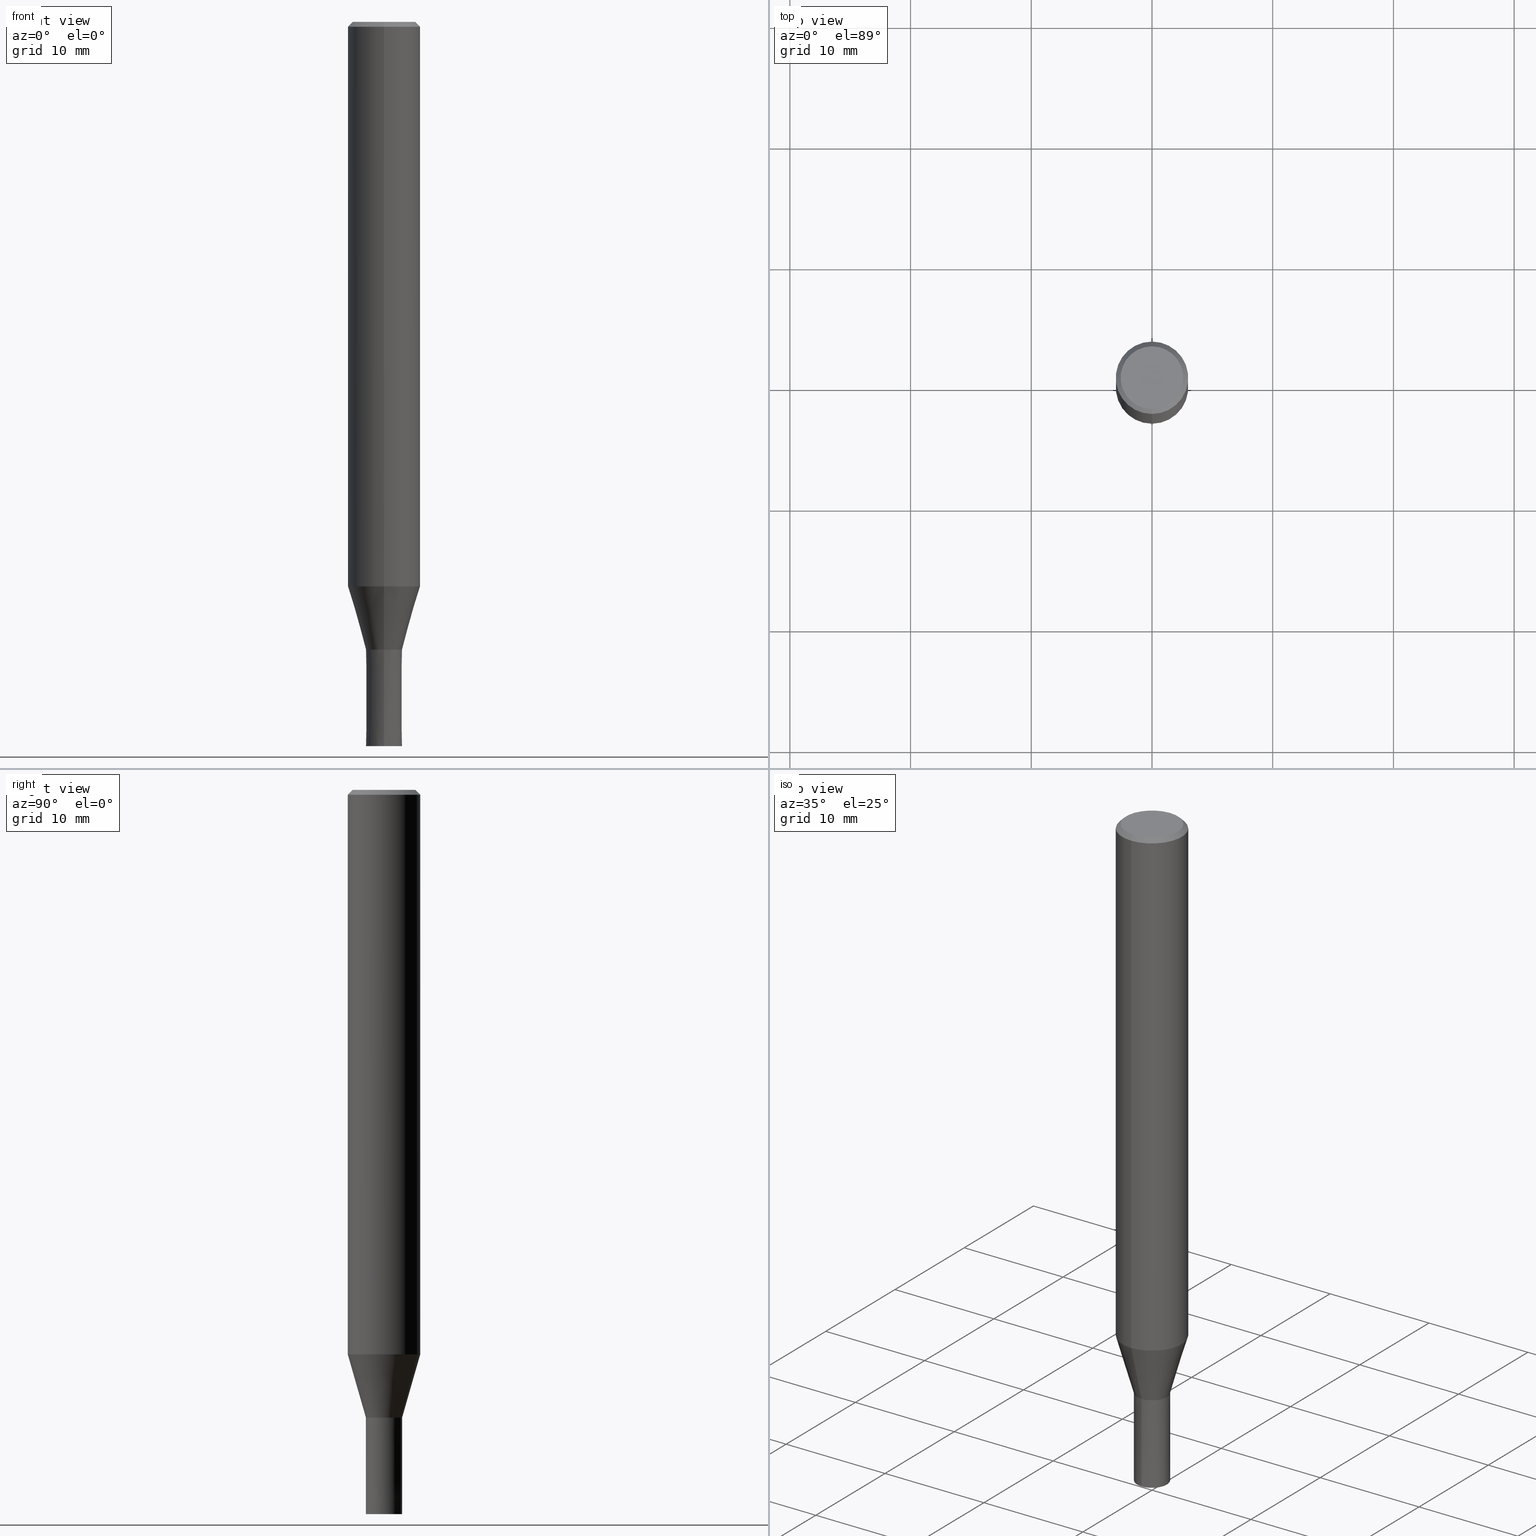
[diagram: canonical four-view strip — front | top / right | iso, engineering-drawing reading convention]
A machine part, canonical four-view strip (front | top / right | iso — engineering-drawing reading convention). The complete STEP part file that produces these views, byte-faithful:
ISO-10303-21;
HEADER;
FILE_DESCRIPTION(('no description'),'unknown implementation level');
FILE_NAME('CZS4030-0800-Huellk.stp','  ',('CIMSOURCE GmbH'),('CADClick - KiM GmbH - www.kimweb.de'),'unknown preprocess','ACIS','unknown authorization');
FILE_SCHEMA(('automotive_design'));
ENDSEC;
DATA;
#1=MECHANICAL_DESIGN_GEOMETRIC_PRESENTATION_REPRESENTATION(' ',(#14,#15,#16,#17,#18,#19,#20,#21,#22,#23,#24,#25,#26,#27,#28,#29,#30,#31,#32,#33,#34,#35,#36,#37,#38,#39,#40,#41,#42,#43,#44,#45,#46,#47,#48,#49,#50,#51,#52,#53,#54,#55,#56,#57,#58,#59,#60,#61,#62,#63,#64),#10);
#2=PRODUCT_DEFINITION_CONTEXT('',#65,'design');
#3=APPLICATION_PROTOCOL_DEFINITION('INTERNATIONAL STANDARD','automotive_design',1994,#65);
#4=PRODUCT_CATEGORY_RELATIONSHIP('NONE','NONE',#66,#67);
#5=SHAPE_DEFINITION_REPRESENTATION(#68,#69);
#6=PRODUCT_DEFINITION_CONTEXT('',#70,'design');
#7=APPLICATION_PROTOCOL_DEFINITION('INTERNATIONAL STANDARD','automotive_design',1994,#70);
#8=PRODUCT_CATEGORY_RELATIONSHIP('NONE','NONE',#71,#72);
#9=SHAPE_DEFINITION_REPRESENTATION(#73,#74);
#10= (GEOMETRIC_REPRESENTATION_CONTEXT(3)GLOBAL_UNCERTAINTY_ASSIGNED_CONTEXT((#77))GLOBAL_UNIT_ASSIGNED_CONTEXT((#79,#80,#81))REPRESENTATION_CONTEXT('NONE','WORKSPACE'));
#14=STYLED_ITEM('',(#83),#84);
#15=STYLED_ITEM('',(#85),#86);
#16=STYLED_ITEM('',(#87),#88);
#17=STYLED_ITEM('',(#89),#90);
#18=STYLED_ITEM('',(#91),#92);
#19=STYLED_ITEM('',(#93),#94);
#20=STYLED_ITEM('',(#95),#96);
#21=STYLED_ITEM('',(#97),#98);
#22=STYLED_ITEM('',(#99),#100);
#23=STYLED_ITEM('',(#101),#102);
#24=STYLED_ITEM('',(#103),#104);
#25=STYLED_ITEM('',(#105),#106);
#26=STYLED_ITEM('',(#107),#108);
#27=STYLED_ITEM('',(#109),#110);
#28=STYLED_ITEM('',(#111),#112);
#29=STYLED_ITEM('',(#113),#114);
#30=STYLED_ITEM('',(#115),#116);
#31=STYLED_ITEM('',(#117),#118);
#32=STYLED_ITEM('',(#119),#120);
#33=STYLED_ITEM('',(#121),#122);
#34=STYLED_ITEM('',(#123),#124);
#35=STYLED_ITEM('',(#125),#126);
#36=STYLED_ITEM('',(#127),#128);
#37=STYLED_ITEM('',(#129),#130);
#38=STYLED_ITEM('',(#131),#132);
#39=STYLED_ITEM('',(#133),#134);
#40=STYLED_ITEM('',(#135),#136);
#41=STYLED_ITEM('',(#137),#138);
#42=STYLED_ITEM('',(#139),#140);
#43=STYLED_ITEM('',(#141),#142);
#44=STYLED_ITEM('',(#143),#144);
#45=STYLED_ITEM('',(#145),#146);
#46=STYLED_ITEM('',(#147),#148);
#47=STYLED_ITEM('',(#149),#150);
#48=STYLED_ITEM('',(#151),#152);
#49=STYLED_ITEM('',(#153),#154);
#50=STYLED_ITEM('',(#155),#156);
#51=STYLED_ITEM('',(#157),#158);
#52=STYLED_ITEM('',(#159),#160);
#53=STYLED_ITEM('',(#161),#162);
#54=STYLED_ITEM('',(#163),#164);
#55=STYLED_ITEM('',(#165),#166);
#56=STYLED_ITEM('',(#167),#168);
#57=STYLED_ITEM('',(#169),#170);
#58=STYLED_ITEM('',(#171),#172);
#59=STYLED_ITEM('',(#173),#174);
#60=STYLED_ITEM('',(#175),#176);
#61=STYLED_ITEM('',(#177),#178);
#62=STYLED_ITEM('',(#179),#180);
#63=STYLED_ITEM('',(#181),#182);
#64=STYLED_ITEM('',(#183),#184);
#65=APPLICATION_CONTEXT(' ');
#66=PRODUCT_CATEGORY('part','NONE');
#67=PRODUCT_RELATED_PRODUCT_CATEGORY('detail',' ',(#185));
#68=PRODUCT_DEFINITION_SHAPE('NONE','NONE',#186);
#69=ADVANCED_BREP_SHAPE_REPRESENTATION('1',(#94,#187),#10);
#70=APPLICATION_CONTEXT(' ');
#71=PRODUCT_CATEGORY('part','NONE');
#72=PRODUCT_RELATED_PRODUCT_CATEGORY('detail',' ',(#188));
#73=PRODUCT_DEFINITION_SHAPE('NONE','NONE',#189);
#74=ADVANCED_BREP_SHAPE_REPRESENTATION('2',(#148,#190),#10);
#77=UNCERTAINTY_MEASURE_WITH_UNIT(LENGTH_MEASURE(1.0E-006),#79,'','');
#79= (CONVERSION_BASED_UNIT('MILLIMETRE',#193)LENGTH_UNIT()NAMED_UNIT(#196));
#80= (NAMED_UNIT(#198)PLANE_ANGLE_UNIT()SI_UNIT($,.RADIAN.));
#81= (NAMED_UNIT(#198)SOLID_ANGLE_UNIT()SI_UNIT($,.STERADIAN.));
#83=PRESENTATION_STYLE_ASSIGNMENT((#204));
#84=ADVANCED_FACE('',(#205),#206,.T.);
#85=PRESENTATION_STYLE_ASSIGNMENT((#207));
#86=VERTEX_POINT('',#208);
#87=PRESENTATION_STYLE_ASSIGNMENT((#209));
#88=EDGE_CURVE('',#132,#124,#210,.T.);
#89=PRESENTATION_STYLE_ASSIGNMENT((#211));
#90=EDGE_CURVE('',#114,#86,#212,.T.);
#91=PRESENTATION_STYLE_ASSIGNMENT((#213));
#92=EDGE_CURVE('',#170,#130,#214,.T.);
#93=PRESENTATION_STYLE_ASSIGNMENT((#215));
#94=MANIFOLD_SOLID_BREP('1',#216);
#95=PRESENTATION_STYLE_ASSIGNMENT((#217));
#96=EDGE_CURVE('',#134,#114,#218,.T.);
#97=PRESENTATION_STYLE_ASSIGNMENT((#219));
#98=EDGE_CURVE('',#144,#170,#220,.T.);
#99=PRESENTATION_STYLE_ASSIGNMENT((#221));
#100=ADVANCED_FACE('',(#222),#223,.T.);
#101=PRESENTATION_STYLE_ASSIGNMENT((#224));
#102=EDGE_CURVE('',#122,#110,#225,.T.);
#103=PRESENTATION_STYLE_ASSIGNMENT((#226));
#104=ADVANCED_FACE('',(#227),#228,.T.);
#105=PRESENTATION_STYLE_ASSIGNMENT((#229));
#106=EDGE_CURVE('',#132,#128,#230,.T.);
#107=PRESENTATION_STYLE_ASSIGNMENT((#231));
#108=EDGE_CURVE('',#130,#182,#232,.T.);
#109=PRESENTATION_STYLE_ASSIGNMENT((#233));
#110=VERTEX_POINT('',#234);
#111=PRESENTATION_STYLE_ASSIGNMENT((#235));
#112=EDGE_CURVE('',#182,#130,#236,.T.);
#113=PRESENTATION_STYLE_ASSIGNMENT((#237));
#114=VERTEX_POINT('',#238);
#115=PRESENTATION_STYLE_ASSIGNMENT((#239));
#116=EDGE_CURVE('',#182,#144,#240,.T.);
#117=PRESENTATION_STYLE_ASSIGNMENT((#241));
#118=EDGE_CURVE('',#110,#122,#242,.T.);
#119=PRESENTATION_STYLE_ASSIGNMENT((#243));
#120=ADVANCED_FACE('',(#244),#245,.T.);
#121=PRESENTATION_STYLE_ASSIGNMENT((#246));
#122=VERTEX_POINT('',#247);
#123=PRESENTATION_STYLE_ASSIGNMENT((#248));
#124=VERTEX_POINT('',#249);
#125=PRESENTATION_STYLE_ASSIGNMENT((#250));
#126=EDGE_CURVE('',#128,#122,#251,.T.);
#127=PRESENTATION_STYLE_ASSIGNMENT((#252));
#128=VERTEX_POINT('',#253);
#129=PRESENTATION_STYLE_ASSIGNMENT((#254));
#130=VERTEX_POINT('',#255);
#131=PRESENTATION_STYLE_ASSIGNMENT((#256));
#132=VERTEX_POINT('',#257);
#133=PRESENTATION_STYLE_ASSIGNMENT((#258));
#134=VERTEX_POINT('',#259);
#135=PRESENTATION_STYLE_ASSIGNMENT((#260));
#136=EDGE_CURVE('',#124,#166,#261,.T.);
#137=PRESENTATION_STYLE_ASSIGNMENT((#262));
#138=EDGE_CURVE('',#166,#128,#263,.T.);
#139=PRESENTATION_STYLE_ASSIGNMENT((#264));
#140=ADVANCED_FACE('',(#265),#266,.T.);
#141=PRESENTATION_STYLE_ASSIGNMENT((#267));
#142=EDGE_CURVE('',#134,#156,#268,.T.);
#143=PRESENTATION_STYLE_ASSIGNMENT((#269));
#144=VERTEX_POINT('',#270);
#145=PRESENTATION_STYLE_ASSIGNMENT((#271));
#146=EDGE_CURVE('',#128,#132,#272,.T.);
#147=PRESENTATION_STYLE_ASSIGNMENT((#273));
#148=MANIFOLD_SOLID_BREP('2',#274);
#149=PRESENTATION_STYLE_ASSIGNMENT((#275));
#150=ADVANCED_FACE('',(#276),#277,.T.);
#151=PRESENTATION_STYLE_ASSIGNMENT((#278));
#152=EDGE_CURVE('',#156,#134,#279,.T.);
#153=PRESENTATION_STYLE_ASSIGNMENT((#280));
#154=ADVANCED_FACE('',(#281,#282),#283,.T.);
#155=PRESENTATION_STYLE_ASSIGNMENT((#284));
#156=VERTEX_POINT('',#285);
#157=PRESENTATION_STYLE_ASSIGNMENT((#286));
#158=EDGE_CURVE('',#110,#132,#287,.T.);
#159=PRESENTATION_STYLE_ASSIGNMENT((#288));
#160=ADVANCED_FACE('',(#289),#290,.T.);
#161=PRESENTATION_STYLE_ASSIGNMENT((#291));
#162=ADVANCED_FACE('',(#292),#293,.T.);
#163=PRESENTATION_STYLE_ASSIGNMENT((#294));
#164=ADVANCED_FACE('',(#295),#296,.T.);
#165=PRESENTATION_STYLE_ASSIGNMENT((#297));
#166=VERTEX_POINT('',#298);
#167=PRESENTATION_STYLE_ASSIGNMENT((#299));
#168=EDGE_CURVE('',#170,#144,#300,.T.);
#169=PRESENTATION_STYLE_ASSIGNMENT((#301));
#170=VERTEX_POINT('',#302);
#171=PRESENTATION_STYLE_ASSIGNMENT((#303));
#172=ADVANCED_FACE('',(#304),#305,.T.);
#173=PRESENTATION_STYLE_ASSIGNMENT((#306));
#174=EDGE_CURVE('',#166,#124,#307,.T.);
#175=PRESENTATION_STYLE_ASSIGNMENT((#308));
#176=EDGE_CURVE('',#86,#156,#309,.T.);
#177=PRESENTATION_STYLE_ASSIGNMENT((#310));
#178=ADVANCED_FACE('',(#311),#312,.T.);
#179=PRESENTATION_STYLE_ASSIGNMENT((#313));
#180=EDGE_CURVE('',#86,#114,#314,.T.);
#181=PRESENTATION_STYLE_ASSIGNMENT((#315));
#182=VERTEX_POINT('',#316);
#183=PRESENTATION_STYLE_ASSIGNMENT((#317));
#184=ADVANCED_FACE('',(#318),#319,.T.);
#185=PRODUCT('1','1','PART-1-DESC',(#320));
#186=PRODUCT_DEFINITION('NONE','NONE',#321,#2);
#187=AXIS2_PLACEMENT_3D('',#322,#323,#324);
#188=PRODUCT('2','2','PART-2-DESC',(#325));
#189=PRODUCT_DEFINITION('NONE','NONE',#326,#6);
#190=AXIS2_PLACEMENT_3D('',#327,#328,#329);
#193=LENGTH_MEASURE_WITH_UNIT(LENGTH_MEASURE(1.0),#330);
#196=DIMENSIONAL_EXPONENTS(1.0,0.0,0.0,0.0,0.0,0.0,0.0);
#198=DIMENSIONAL_EXPONENTS(0.0,0.0,0.0,0.0,0.0,0.0,0.0);
#204=SURFACE_STYLE_USAGE(.BOTH.,#331);
#205=FACE_OUTER_BOUND('',#332,.T.);
#206=CONICAL_SURFACE('',#333,2.8,0.78539816339745);
#207=POINT_STYLE(' ',#334,POSITIVE_LENGTH_MEASURE(1.0E-006),#335);
#208=CARTESIAN_POINT('',(0.0,2.99995,-46.769));
#209=CURVE_STYLE('',#336,POSITIVE_LENGTH_MEASURE(1.0E-006),#337);
#210=LINE('',#338,#339);
#211=CURVE_STYLE('',#340,POSITIVE_LENGTH_MEASURE(1.0E-006),#341);
#212=CIRCLE('',#342,2.99995);
#213=CURVE_STYLE('',#343,POSITIVE_LENGTH_MEASURE(1.0E-006),#344);
#214=LINE('',#345,#346);
#215=SURFACE_STYLE_USAGE(.BOTH.,#347);
#216=CLOSED_SHELL('',(#178,#172,#120,#154,#162,#84,#140,#150,#100));
#217=CURVE_STYLE('',#348,POSITIVE_LENGTH_MEASURE(1.0E-006),#349);
#218=LINE('',#350,#351);
#219=CURVE_STYLE('',#352,POSITIVE_LENGTH_MEASURE(1.0E-006),#353);
#220=CIRCLE('',#354,1.4999);
#221=SURFACE_STYLE_USAGE(.BOTH.,#355);
#222=FACE_OUTER_BOUND('',#356,.T.);
#223=PLANE('',#357);
#224=CURVE_STYLE('',#358,POSITIVE_LENGTH_MEASURE(1.0E-006),#359);
#225=CIRCLE('',#360,2.6);
#226=SURFACE_STYLE_USAGE(.BOTH.,#361);
#227=FACE_OUTER_BOUND('',#362,.T.);
#228=CONICAL_SURFACE('',#363,1.49995,1.24999999993476E-005);
#229=CURVE_STYLE('',#364,POSITIVE_LENGTH_MEASURE(1.0E-006),#365);
#230=CIRCLE('',#366,3.0);
#231=CURVE_STYLE('',#367,POSITIVE_LENGTH_MEASURE(1.0E-006),#368);
#232=CIRCLE('',#369,1.5);
#233=POINT_STYLE(' ',#370,POSITIVE_LENGTH_MEASURE(1.0E-006),#371);
#234=CARTESIAN_POINT('',(0.0,2.6,0.0));
#235=CURVE_STYLE('',#372,POSITIVE_LENGTH_MEASURE(1.0E-006),#373);
#236=CIRCLE('',#374,1.5);
#237=POINT_STYLE(' ',#375,POSITIVE_LENGTH_MEASURE(1.0E-006),#376);
#238=CARTESIAN_POINT('',(3.67375783114944E-016,-2.99995,-46.769));
#239=CURVE_STYLE('',#377,POSITIVE_LENGTH_MEASURE(1.0E-006),#378);
#240=LINE('',#379,#380);
#241=CURVE_STYLE('',#381,POSITIVE_LENGTH_MEASURE(1.0E-006),#382);
#242=CIRCLE('',#383,2.6);
#243=SURFACE_STYLE_USAGE(.BOTH.,#384);
#244=FACE_OUTER_BOUND('',#385,.T.);
#245=CONICAL_SURFACE('',#386,2.8,0.78539816339745);
#246=POINT_STYLE(' ',#387,POSITIVE_LENGTH_MEASURE(1.0E-006),#388);
#247=CARTESIAN_POINT('',(3.18397651993818E-016,-2.6,0.0));
#248=POINT_STYLE(' ',#389,POSITIVE_LENGTH_MEASURE(1.0E-006),#390);
#249=CARTESIAN_POINT('',(0.0,3.0,-46.769));
#250=CURVE_STYLE('',#391,POSITIVE_LENGTH_MEASURE(1.0E-006),#392);
#251=LINE('',#393,#394);
#252=POINT_STYLE(' ',#395,POSITIVE_LENGTH_MEASURE(1.0E-006),#396);
#253=CARTESIAN_POINT('',(3.67381906146713E-016,-3.0,-0.399999999999999));
#254=POINT_STYLE(' ',#397,POSITIVE_LENGTH_MEASURE(1.0E-006),#398);
#255=CARTESIAN_POINT('',(0.0,1.5,-60.0));
#256=POINT_STYLE(' ',#399,POSITIVE_LENGTH_MEASURE(1.0E-006),#400);
#257=CARTESIAN_POINT('',(0.0,3.0,-0.399999999999999));
#258=POINT_STYLE(' ',#401,POSITIVE_LENGTH_MEASURE(1.0E-006),#402);
#259=CARTESIAN_POINT('',(1.83684830041587E-016,-1.49995,-52.0));
#260=CURVE_STYLE('',#403,POSITIVE_LENGTH_MEASURE(1.0E-006),#404);
#261=CIRCLE('',#405,3.0);
#262=CURVE_STYLE('',#406,POSITIVE_LENGTH_MEASURE(1.0E-006),#407);
#263=LINE('',#408,#409);
#264=SURFACE_STYLE_USAGE(.BOTH.,#410);
#265=FACE_OUTER_BOUND('',#411,.T.);
#266=CYLINDRICAL_SURFACE('',#412,3.0);
#267=CURVE_STYLE('',#413,POSITIVE_LENGTH_MEASURE(1.0E-006),#414);
#268=CIRCLE('',#415,1.49995);
#269=POINT_STYLE(' ',#416,POSITIVE_LENGTH_MEASURE(1.0E-006),#417);
#270=CARTESIAN_POINT('',(1.83678707009818E-016,-1.4999,-52.0));
#271=CURVE_STYLE('',#418,POSITIVE_LENGTH_MEASURE(1.0E-006),#419);
#272=CIRCLE('',#420,3.0);
#273=SURFACE_STYLE_USAGE(.BOTH.,#421);
#274=CLOSED_SHELL('',(#104,#160,#184,#164));
#275=SURFACE_STYLE_USAGE(.BOTH.,#422);
#276=FACE_OUTER_BOUND('',#423,.T.);
#277=CONICAL_SURFACE('',#424,2.24995,0.279258842899557);
#278=CURVE_STYLE('',#425,POSITIVE_LENGTH_MEASURE(1.0E-006),#426);
#279=CIRCLE('',#427,1.49995);
#280=SURFACE_STYLE_USAGE(.BOTH.,#428);
#281=FACE_OUTER_BOUND('',#429,.T.);
#282=FACE_BOUND('',#430,.T.);
#283=PLANE('',#431);
#284=POINT_STYLE(' ',#432,POSITIVE_LENGTH_MEASURE(1.0E-006),#433);
#285=CARTESIAN_POINT('',(0.0,1.49995,-52.0));
#286=CURVE_STYLE('',#434,POSITIVE_LENGTH_MEASURE(1.0E-006),#435);
#287=LINE('',#436,#437);
#288=SURFACE_STYLE_USAGE(.BOTH.,#438);
#289=FACE_OUTER_BOUND('',#439,.T.);
#290=PLANE('',#440);
#291=SURFACE_STYLE_USAGE(.BOTH.,#441);
#292=FACE_OUTER_BOUND('',#442,.T.);
#293=PLANE('',#443);
#294=SURFACE_STYLE_USAGE(.BOTH.,#444);
#295=FACE_OUTER_BOUND('',#445,.T.);
#296=PLANE('',#446);
#297=POINT_STYLE(' ',#447,POSITIVE_LENGTH_MEASURE(1.0E-006),#448);
#298=CARTESIAN_POINT('',(3.67381906146713E-016,-3.0,-46.769));
#299=CURVE_STYLE('',#449,POSITIVE_LENGTH_MEASURE(1.0E-006),#450);
#300=CIRCLE('',#451,1.4999);
#301=POINT_STYLE(' ',#452,POSITIVE_LENGTH_MEASURE(1.0E-006),#453);
#302=CARTESIAN_POINT('',(0.0,1.4999,-52.0));
#303=SURFACE_STYLE_USAGE(.BOTH.,#454);
#304=FACE_OUTER_BOUND('',#455,.T.);
#305=CYLINDRICAL_SURFACE('',#456,3.0);
#306=CURVE_STYLE('',#457,POSITIVE_LENGTH_MEASURE(1.0E-006),#458);
#307=CIRCLE('',#459,3.0);
#308=CURVE_STYLE('',#460,POSITIVE_LENGTH_MEASURE(1.0E-006),#461);
#309=LINE('',#462,#463);
#310=SURFACE_STYLE_USAGE(.BOTH.,#464);
#311=FACE_OUTER_BOUND('',#465,.T.);
#312=CONICAL_SURFACE('',#466,2.24995,0.279258842899557);
#313=CURVE_STYLE('',#467,POSITIVE_LENGTH_MEASURE(1.0E-006),#468);
#314=CIRCLE('',#469,2.99995);
#315=POINT_STYLE(' ',#470,POSITIVE_LENGTH_MEASURE(1.0E-006),#471);
#316=CARTESIAN_POINT('',(1.83690953073357E-016,-1.5,-60.0));
#317=SURFACE_STYLE_USAGE(.BOTH.,#472);
#318=FACE_OUTER_BOUND('',#473,.T.);
#319=CONICAL_SURFACE('',#474,1.49995,1.24999999993476E-005);
#320=PRODUCT_CONTEXT('',#65,'mechanical');
#321=PRODUCT_DEFINITION_FORMATION_WITH_SPECIFIED_SOURCE(' ','NONE',#185,.NOT_KNOWN.);
#322=CARTESIAN_POINT('',(0.0,0.0,0.0));
#323=DIRECTION('',(0.0,0.0,1.0));
#324=DIRECTION('',(1.0,0.0,0.0));
#325=PRODUCT_CONTEXT('',#70,'mechanical');
#326=PRODUCT_DEFINITION_FORMATION_WITH_SPECIFIED_SOURCE(' ','NONE',#188,.NOT_KNOWN.);
#327=CARTESIAN_POINT('',(0.0,0.0,0.0));
#328=DIRECTION('',(0.0,0.0,1.0));
#329=DIRECTION('',(1.0,0.0,0.0));
#330= (NAMED_UNIT(#196)LENGTH_UNIT()SI_UNIT(.MILLI.,.METRE.));
#331=SURFACE_SIDE_STYLE('',(#476));
#332=EDGE_LOOP('',(#477,#478,#479,#480));
#333=AXIS2_PLACEMENT_3D('',#481,#482,#483);
#334=PRE_DEFINED_MARKER('');
#335=COLOUR_RGB('',0.498039215803146,0.498039215803146,0.498039215803146);
#336=DRAUGHTING_PRE_DEFINED_CURVE_FONT('continuous');
#337=COLOUR_RGB('',0.498039215803146,0.498039215803146,0.498039215803146);
#338=CARTESIAN_POINT('',(-3.67381906146713E-016,3.0,-23.5845));
#339=VECTOR('',#484,1.0);
#340=DRAUGHTING_PRE_DEFINED_CURVE_FONT('continuous');
#341=COLOUR_RGB('',0.498039215803146,0.498039215803146,0.498039215803146);
#342=AXIS2_PLACEMENT_3D('',#485,#486,#487);
#343=DRAUGHTING_PRE_DEFINED_CURVE_FONT('continuous');
#344=COLOUR_RGB('',0.800000011920929,0.800000011920929,0.800000011920929);
#345=CARTESIAN_POINT('',(-1.83684830041587E-016,1.49995,-56.0));
#346=VECTOR('',#488,1.0);
#347=SURFACE_SIDE_STYLE('',(#489));
#348=DRAUGHTING_PRE_DEFINED_CURVE_FONT('continuous');
#349=COLOUR_RGB('',0.498039215803146,0.498039215803146,0.498039215803146);
#350=CARTESIAN_POINT('',(2.75530306578266E-016,-2.24995,-49.3845));
#351=VECTOR('',#490,1.0);
#352=DRAUGHTING_PRE_DEFINED_CURVE_FONT('continuous');
#353=COLOUR_RGB('',0.800000011920929,0.800000011920929,0.800000011920929);
#354=AXIS2_PLACEMENT_3D('',#491,#492,#493);
#355=SURFACE_SIDE_STYLE('',(#494));
#356=EDGE_LOOP('',(#495,#496));
#357=AXIS2_PLACEMENT_3D('',#497,#498,#499);
#358=DRAUGHTING_PRE_DEFINED_CURVE_FONT('continuous');
#359=COLOUR_RGB('',0.498039215803146,0.498039215803146,0.498039215803146);
#360=AXIS2_PLACEMENT_3D('',#500,#501,#502);
#361=SURFACE_SIDE_STYLE('',(#503));
#362=EDGE_LOOP('',(#504,#505,#506,#507));
#363=AXIS2_PLACEMENT_3D('',#508,#509,#510);
#364=DRAUGHTING_PRE_DEFINED_CURVE_FONT('continuous');
#365=COLOUR_RGB('',0.498039215803146,0.498039215803146,0.498039215803146);
#366=AXIS2_PLACEMENT_3D('',#511,#512,#513);
#367=DRAUGHTING_PRE_DEFINED_CURVE_FONT('continuous');
#368=COLOUR_RGB('',0.800000011920929,0.800000011920929,0.800000011920929);
#369=AXIS2_PLACEMENT_3D('',#514,#515,#516);
#370=PRE_DEFINED_MARKER('');
#371=COLOUR_RGB('',0.498039215803146,0.498039215803146,0.498039215803146);
#372=DRAUGHTING_PRE_DEFINED_CURVE_FONT('continuous');
#373=COLOUR_RGB('',0.800000011920929,0.800000011920929,0.800000011920929);
#374=AXIS2_PLACEMENT_3D('',#517,#518,#519);
#375=PRE_DEFINED_MARKER('');
#376=COLOUR_RGB('',0.498039215803146,0.498039215803146,0.498039215803146);
#377=DRAUGHTING_PRE_DEFINED_CURVE_FONT('continuous');
#378=COLOUR_RGB('',0.800000011920929,0.800000011920929,0.800000011920929);
#379=CARTESIAN_POINT('',(1.83684830041588E-016,-1.49995,-56.0));
#380=VECTOR('',#520,1.0);
#381=DRAUGHTING_PRE_DEFINED_CURVE_FONT('continuous');
#382=COLOUR_RGB('',0.498039215803146,0.498039215803146,0.498039215803146);
#383=AXIS2_PLACEMENT_3D('',#521,#522,#523);
#384=SURFACE_SIDE_STYLE('',(#524));
#385=EDGE_LOOP('',(#525,#526,#527,#528));
#386=AXIS2_PLACEMENT_3D('',#529,#530,#531);
#387=PRE_DEFINED_MARKER('');
#388=COLOUR_RGB('',0.498039215803146,0.498039215803146,0.498039215803146);
#389=PRE_DEFINED_MARKER('');
#390=COLOUR_RGB('',0.498039215803146,0.498039215803146,0.498039215803146);
#391=DRAUGHTING_PRE_DEFINED_CURVE_FONT('continuous');
#392=COLOUR_RGB('',0.498039215803146,0.498039215803146,0.498039215803146);
#393=CARTESIAN_POINT('',(3.42889779070266E-016,-2.8,-0.199999999999996));
#394=VECTOR('',#532,1.0);
#395=PRE_DEFINED_MARKER('');
#396=COLOUR_RGB('',0.498039215803146,0.498039215803146,0.498039215803146);
#397=PRE_DEFINED_MARKER('');
#398=COLOUR_RGB('',0.800000011920929,0.800000011920929,0.800000011920929);
#399=PRE_DEFINED_MARKER('');
#400=COLOUR_RGB('',0.498039215803146,0.498039215803146,0.498039215803146);
#401=PRE_DEFINED_MARKER('');
#402=COLOUR_RGB('',0.498039215803146,0.498039215803146,0.498039215803146);
#403=DRAUGHTING_PRE_DEFINED_CURVE_FONT('continuous');
#404=COLOUR_RGB('',0.498039215803146,0.498039215803146,0.498039215803146);
#405=AXIS2_PLACEMENT_3D('',#533,#534,#535);
#406=DRAUGHTING_PRE_DEFINED_CURVE_FONT('continuous');
#407=COLOUR_RGB('',0.498039215803146,0.498039215803146,0.498039215803146);
#408=CARTESIAN_POINT('',(3.67381906146713E-016,-3.0,-23.5845));
#409=VECTOR('',#536,1.0);
#410=SURFACE_SIDE_STYLE('',(#537));
#411=EDGE_LOOP('',(#538,#539,#540,#541));
#412=AXIS2_PLACEMENT_3D('',#542,#543,#544);
#413=DRAUGHTING_PRE_DEFINED_CURVE_FONT('continuous');
#414=COLOUR_RGB('',0.498039215803146,0.498039215803146,0.498039215803146);
#415=AXIS2_PLACEMENT_3D('',#545,#546,#547);
#416=PRE_DEFINED_MARKER('');
#417=COLOUR_RGB('',0.800000011920929,0.800000011920929,0.800000011920929);
#418=DRAUGHTING_PRE_DEFINED_CURVE_FONT('continuous');
#419=COLOUR_RGB('',0.498039215803146,0.498039215803146,0.498039215803146);
#420=AXIS2_PLACEMENT_3D('',#548,#549,#550);
#421=SURFACE_SIDE_STYLE('',(#551));
#422=SURFACE_SIDE_STYLE('',(#552));
#423=EDGE_LOOP('',(#553,#554,#555,#556));
#424=AXIS2_PLACEMENT_3D('',#557,#558,#559);
#425=DRAUGHTING_PRE_DEFINED_CURVE_FONT('continuous');
#426=COLOUR_RGB('',0.498039215803146,0.498039215803146,0.498039215803146);
#427=AXIS2_PLACEMENT_3D('',#560,#561,#562);
#428=SURFACE_SIDE_STYLE('',(#563));
#429=EDGE_LOOP('',(#564,#565));
#430=EDGE_LOOP('',(#566,#567));
#431=AXIS2_PLACEMENT_3D('',#568,#569,#570);
#432=PRE_DEFINED_MARKER('');
#433=COLOUR_RGB('',0.498039215803146,0.498039215803146,0.498039215803146);
#434=DRAUGHTING_PRE_DEFINED_CURVE_FONT('continuous');
#435=COLOUR_RGB('',0.498039215803146,0.498039215803146,0.498039215803146);
#436=CARTESIAN_POINT('',(-3.42889779070266E-016,2.8,-0.199999999999996));
#437=VECTOR('',#571,1.0);
#438=SURFACE_SIDE_STYLE('',(#572));
#439=EDGE_LOOP('',(#573,#574));
#440=AXIS2_PLACEMENT_3D('',#575,#576,#577);
#441=SURFACE_SIDE_STYLE('',(#578));
#442=EDGE_LOOP('',(#579,#580));
#443=AXIS2_PLACEMENT_3D('',#581,#582,#583);
#444=SURFACE_SIDE_STYLE('',(#584));
#445=EDGE_LOOP('',(#585,#586));
#446=AXIS2_PLACEMENT_3D('',#587,#588,#589);
#447=PRE_DEFINED_MARKER('');
#448=COLOUR_RGB('',0.498039215803146,0.498039215803146,0.498039215803146);
#449=DRAUGHTING_PRE_DEFINED_CURVE_FONT('continuous');
#450=COLOUR_RGB('',0.800000011920929,0.800000011920929,0.800000011920929);
#451=AXIS2_PLACEMENT_3D('',#590,#591,#592);
#452=PRE_DEFINED_MARKER('');
#453=COLOUR_RGB('',0.800000011920929,0.800000011920929,0.800000011920929);
#454=SURFACE_SIDE_STYLE('',(#593));
#455=EDGE_LOOP('',(#594,#595,#596,#597));
#456=AXIS2_PLACEMENT_3D('',#598,#599,#600);
#457=DRAUGHTING_PRE_DEFINED_CURVE_FONT('continuous');
#458=COLOUR_RGB('',0.498039215803146,0.498039215803146,0.498039215803146);
#459=AXIS2_PLACEMENT_3D('',#601,#602,#603);
#460=DRAUGHTING_PRE_DEFINED_CURVE_FONT('continuous');
#461=COLOUR_RGB('',0.498039215803146,0.498039215803146,0.498039215803146);
#462=CARTESIAN_POINT('',(-2.75530306578266E-016,2.24995,-49.3845));
#463=VECTOR('',#604,1.0);
#464=SURFACE_SIDE_STYLE('',(#605));
#465=EDGE_LOOP('',(#606,#607,#608,#609));
#466=AXIS2_PLACEMENT_3D('',#610,#611,#612);
#467=DRAUGHTING_PRE_DEFINED_CURVE_FONT('continuous');
#468=COLOUR_RGB('',0.498039215803146,0.498039215803146,0.498039215803146);
#469=AXIS2_PLACEMENT_3D('',#613,#614,#615);
#470=PRE_DEFINED_MARKER('');
#471=COLOUR_RGB('',0.800000011920929,0.800000011920929,0.800000011920929);
#472=SURFACE_SIDE_STYLE('',(#616));
#473=EDGE_LOOP('',(#617,#618,#619,#620));
#474=AXIS2_PLACEMENT_3D('',#621,#622,#623);
#476=SURFACE_STYLE_FILL_AREA(#624);
#477=ORIENTED_EDGE('',*,*,#158,.T.);
#478=ORIENTED_EDGE('',*,*,#146,.F.);
#479=ORIENTED_EDGE('',*,*,#126,.T.);
#480=ORIENTED_EDGE('',*,*,#102,.T.);
#481=CARTESIAN_POINT('',(0.0,0.0,-0.199999999999996));
#482=DIRECTION('',(0.0,-0.0,-1.0));
#483=DIRECTION('',(0.0,1.0,0.0));
#484=DIRECTION('',(0.0,0.0,-1.0));
#485=CARTESIAN_POINT('',(0.0,0.0,-46.769));
#486=DIRECTION('',(0.0,0.0,-1.0));
#487=DIRECTION('',(0.0,1.0,0.0));
#488=DIRECTION('',(-1.53075794215821E-021,1.24999999990221E-005,-0.999999999921875));
#489=SURFACE_STYLE_FILL_AREA(#625);
#490=DIRECTION('',(3.37554511665357E-017,-0.275643279664314,0.961259997282682));
#491=CARTESIAN_POINT('',(0.0,0.0,-52.0));
#492=DIRECTION('',(0.0,0.0,-1.0));
#493=DIRECTION('',(0.0,1.0,0.0));
#494=SURFACE_STYLE_FILL_AREA(#626);
#495=ORIENTED_EDGE('',*,*,#152,.T.);
#496=ORIENTED_EDGE('',*,*,#142,.T.);
#497=CARTESIAN_POINT('',(0.0,0.749975,-52.0));
#498=DIRECTION('',(0.0,0.0,-1.0));
#499=DIRECTION('',(0.0,1.0,0.0));
#500=CARTESIAN_POINT('',(0.0,0.0,0.0));
#501=DIRECTION('',(0.0,0.0,-1.0));
#502=DIRECTION('',(0.0,1.0,0.0));
#503=SURFACE_STYLE_FILL_AREA(#627);
#504=ORIENTED_EDGE('',*,*,#92,.F.);
#505=ORIENTED_EDGE('',*,*,#168,.T.);
#506=ORIENTED_EDGE('',*,*,#116,.F.);
#507=ORIENTED_EDGE('',*,*,#108,.F.);
#508=CARTESIAN_POINT('',(0.0,0.0,-56.0));
#509=DIRECTION('',(0.0,-0.0,-1.0));
#510=DIRECTION('',(0.0,1.0,0.0));
#511=CARTESIAN_POINT('',(0.0,0.0,-0.399999999999999));
#512=DIRECTION('',(0.0,0.0,-1.0));
#513=DIRECTION('',(0.0,1.0,0.0));
#514=CARTESIAN_POINT('',(0.0,0.0,-60.0));
#515=DIRECTION('',(0.0,0.0,-1.0));
#516=DIRECTION('',(0.0,1.0,0.0));
#517=CARTESIAN_POINT('',(0.0,0.0,-60.0));
#518=DIRECTION('',(0.0,0.0,-1.0));
#519=DIRECTION('',(0.0,1.0,0.0));
#520=DIRECTION('',(-1.53075794215821E-021,1.24999999990221E-005,0.999999999921875));
#521=CARTESIAN_POINT('',(0.0,0.0,0.0));
#522=DIRECTION('',(0.0,0.0,-1.0));
#523=DIRECTION('',(0.0,1.0,0.0));
#524=SURFACE_STYLE_FILL_AREA(#628);
#525=ORIENTED_EDGE('',*,*,#158,.F.);
#526=ORIENTED_EDGE('',*,*,#118,.T.);
#527=ORIENTED_EDGE('',*,*,#126,.F.);
#528=ORIENTED_EDGE('',*,*,#106,.F.);
#529=CARTESIAN_POINT('',(0.0,0.0,-0.199999999999996));
#530=DIRECTION('',(0.0,-0.0,-1.0));
#531=DIRECTION('',(0.0,1.0,0.0));
#532=DIRECTION('',(-8.65927457071937E-017,0.707106781186549,0.707106781186546));
#533=CARTESIAN_POINT('',(0.0,0.0,-46.769));
#534=DIRECTION('',(0.0,0.0,-1.0));
#535=DIRECTION('',(0.0,1.0,0.0));
#536=DIRECTION('',(-0.0,-0.0,1.0));
#537=SURFACE_STYLE_FILL_AREA(#629);
#538=ORIENTED_EDGE('',*,*,#88,.T.);
#539=ORIENTED_EDGE('',*,*,#174,.F.);
#540=ORIENTED_EDGE('',*,*,#138,.T.);
#541=ORIENTED_EDGE('',*,*,#146,.T.);
#542=CARTESIAN_POINT('',(0.0,0.0,-23.5845));
#543=DIRECTION('',(-0.0,-0.0,1.0));
#544=DIRECTION('',(0.0,1.0,0.0));
#545=CARTESIAN_POINT('',(0.0,0.0,-52.0));
#546=DIRECTION('',(0.0,0.0,-1.0));
#547=DIRECTION('',(0.0,1.0,0.0));
#548=CARTESIAN_POINT('',(0.0,0.0,-0.399999999999999));
#549=DIRECTION('',(0.0,0.0,-1.0));
#550=DIRECTION('',(0.0,1.0,0.0));
#551=SURFACE_STYLE_FILL_AREA(#630);
#552=SURFACE_STYLE_FILL_AREA(#631);
#553=ORIENTED_EDGE('',*,*,#176,.T.);
#554=ORIENTED_EDGE('',*,*,#142,.F.);
#555=ORIENTED_EDGE('',*,*,#96,.T.);
#556=ORIENTED_EDGE('',*,*,#90,.T.);
#557=CARTESIAN_POINT('',(0.0,0.0,-49.3845));
#558=DIRECTION('',(-0.0,-0.0,1.0));
#559=DIRECTION('',(0.0,1.0,0.0));
#560=CARTESIAN_POINT('',(0.0,0.0,-52.0));
#561=DIRECTION('',(0.0,0.0,-1.0));
#562=DIRECTION('',(0.0,1.0,0.0));
#563=SURFACE_STYLE_FILL_AREA(#632);
#564=ORIENTED_EDGE('',*,*,#136,.T.);
#565=ORIENTED_EDGE('',*,*,#174,.T.);
#566=ORIENTED_EDGE('',*,*,#180,.F.);
#567=ORIENTED_EDGE('',*,*,#90,.F.);
#568=CARTESIAN_POINT('',(0.0,1.5,-46.769));
#569=DIRECTION('',(0.0,0.0,-1.0));
#570=DIRECTION('',(0.0,1.0,0.0));
#571=DIRECTION('',(-8.65927457071937E-017,0.707106781186549,-0.707106781186546));
#572=SURFACE_STYLE_FILL_AREA(#633);
#573=ORIENTED_EDGE('',*,*,#168,.F.);
#574=ORIENTED_EDGE('',*,*,#98,.F.);
#575=CARTESIAN_POINT('',(0.0,0.74995,-52.0));
#576=DIRECTION('',(-0.0,0.0,1.0));
#577=DIRECTION('',(0.0,-1.0,0.0));
#578=SURFACE_STYLE_FILL_AREA(#634);
#579=ORIENTED_EDGE('',*,*,#118,.F.);
#580=ORIENTED_EDGE('',*,*,#102,.F.);
#581=CARTESIAN_POINT('',(0.0,1.3,0.0));
#582=DIRECTION('',(-0.0,0.0,1.0));
#583=DIRECTION('',(0.0,-1.0,0.0));
#584=SURFACE_STYLE_FILL_AREA(#635);
#585=ORIENTED_EDGE('',*,*,#108,.T.);
#586=ORIENTED_EDGE('',*,*,#112,.T.);
#587=CARTESIAN_POINT('',(0.0,0.7475,-60.0));
#588=DIRECTION('',(0.0,0.0,-1.0));
#589=DIRECTION('',(0.0,1.0,0.0));
#590=CARTESIAN_POINT('',(0.0,0.0,-52.0));
#591=DIRECTION('',(0.0,0.0,-1.0));
#592=DIRECTION('',(0.0,1.0,0.0));
#593=SURFACE_STYLE_FILL_AREA(#636);
#594=ORIENTED_EDGE('',*,*,#88,.F.);
#595=ORIENTED_EDGE('',*,*,#106,.T.);
#596=ORIENTED_EDGE('',*,*,#138,.F.);
#597=ORIENTED_EDGE('',*,*,#136,.F.);
#598=CARTESIAN_POINT('',(0.0,0.0,-23.5845));
#599=DIRECTION('',(-0.0,-0.0,1.0));
#600=DIRECTION('',(0.0,1.0,0.0));
#601=CARTESIAN_POINT('',(0.0,0.0,-46.769));
#602=DIRECTION('',(0.0,0.0,-1.0));
#603=DIRECTION('',(0.0,1.0,0.0));
#604=DIRECTION('',(3.37554511665357E-017,-0.275643279664314,-0.961259997282682));
#605=SURFACE_STYLE_FILL_AREA(#637);
#606=ORIENTED_EDGE('',*,*,#176,.F.);
#607=ORIENTED_EDGE('',*,*,#180,.T.);
#608=ORIENTED_EDGE('',*,*,#96,.F.);
#609=ORIENTED_EDGE('',*,*,#152,.F.);
#610=CARTESIAN_POINT('',(0.0,0.0,-49.3845));
#611=DIRECTION('',(-0.0,-0.0,1.0));
#612=DIRECTION('',(0.0,1.0,0.0));
#613=CARTESIAN_POINT('',(0.0,0.0,-46.769));
#614=DIRECTION('',(0.0,0.0,-1.0));
#615=DIRECTION('',(0.0,1.0,0.0));
#616=SURFACE_STYLE_FILL_AREA(#638);
#617=ORIENTED_EDGE('',*,*,#92,.T.);
#618=ORIENTED_EDGE('',*,*,#112,.F.);
#619=ORIENTED_EDGE('',*,*,#116,.T.);
#620=ORIENTED_EDGE('',*,*,#98,.T.);
#621=CARTESIAN_POINT('',(0.0,0.0,-56.0));
#622=DIRECTION('',(0.0,-0.0,-1.0));
#623=DIRECTION('',(0.0,1.0,0.0));
#624=FILL_AREA_STYLE('',(#639));
#625=FILL_AREA_STYLE('',(#640));
#626=FILL_AREA_STYLE('',(#641));
#627=FILL_AREA_STYLE('',(#642));
#628=FILL_AREA_STYLE('',(#643));
#629=FILL_AREA_STYLE('',(#644));
#630=FILL_AREA_STYLE('',(#645));
#631=FILL_AREA_STYLE('',(#646));
#632=FILL_AREA_STYLE('',(#647));
#633=FILL_AREA_STYLE('',(#648));
#634=FILL_AREA_STYLE('',(#649));
#635=FILL_AREA_STYLE('',(#650));
#636=FILL_AREA_STYLE('',(#651));
#637=FILL_AREA_STYLE('',(#652));
#638=FILL_AREA_STYLE('',(#653));
#639=FILL_AREA_STYLE_COLOUR('',#654);
#640=FILL_AREA_STYLE_COLOUR('',#655);
#641=FILL_AREA_STYLE_COLOUR('',#656);
#642=FILL_AREA_STYLE_COLOUR('',#657);
#643=FILL_AREA_STYLE_COLOUR('',#658);
#644=FILL_AREA_STYLE_COLOUR('',#659);
#645=FILL_AREA_STYLE_COLOUR('',#660);
#646=FILL_AREA_STYLE_COLOUR('',#661);
#647=FILL_AREA_STYLE_COLOUR('',#662);
#648=FILL_AREA_STYLE_COLOUR('',#663);
#649=FILL_AREA_STYLE_COLOUR('',#664);
#650=FILL_AREA_STYLE_COLOUR('',#665);
#651=FILL_AREA_STYLE_COLOUR('',#666);
#652=FILL_AREA_STYLE_COLOUR('',#667);
#653=FILL_AREA_STYLE_COLOUR('',#668);
#654=COLOUR_RGB('',0.498039215803146,0.498039215803146,0.498039215803146);
#655=COLOUR_RGB('',0.498039215803146,0.498039215803146,0.498039215803146);
#656=COLOUR_RGB('',0.498039215803146,0.498039215803146,0.498039215803146);
#657=COLOUR_RGB('',0.800000011920929,0.800000011920929,0.800000011920929);
#658=COLOUR_RGB('',0.498039215803146,0.498039215803146,0.498039215803146);
#659=COLOUR_RGB('',0.498039215803146,0.498039215803146,0.498039215803146);
#660=COLOUR_RGB('',0.800000011920929,0.800000011920929,0.800000011920929);
#661=COLOUR_RGB('',0.498039215803146,0.498039215803146,0.498039215803146);
#662=COLOUR_RGB('',0.498039215803146,0.498039215803146,0.498039215803146);
#663=COLOUR_RGB('',0.800000011920929,0.800000011920929,0.800000011920929);
#664=COLOUR_RGB('',0.498039215803146,0.498039215803146,0.498039215803146);
#665=COLOUR_RGB('',0.800000011920929,0.800000011920929,0.800000011920929);
#666=COLOUR_RGB('',0.498039215803146,0.498039215803146,0.498039215803146);
#667=COLOUR_RGB('',0.498039215803146,0.498039215803146,0.498039215803146);
#668=COLOUR_RGB('',0.800000011920929,0.800000011920929,0.800000011920929);
#669=AXIS2_PLACEMENT_3D('PCS',#670,#671,#672);
#670=CARTESIAN_POINT('',(0.0,0.0,0.0));
#671=DIRECTION('',(0.0,0.0,1.0));
#672=DIRECTION('',(1.0,0.0,0.0));
#673=AXIS2_PLACEMENT_3D('CIP',#674,#675,#676);
#674=CARTESIAN_POINT('',(0.0,0.0,-60.0));
#675=DIRECTION('',(0.0,0.0,1.0));
#676=DIRECTION('',(1.0,0.0,0.0));
#677=AXIS2_PLACEMENT_3D('CRP',#678,#679,#680);
#678=CARTESIAN_POINT('',(-1.5,0.0,-60.0));
#679=DIRECTION('',(0.0,0.0,1.0));
#680=DIRECTION('',(1.0,0.0,0.0));
#681=AXIS2_PLACEMENT_3D('MCS',#682,#683,#684);
#682=CARTESIAN_POINT('',(0.0,0.0,-46.769));
#683=DIRECTION('',(0.0,0.0,1.0));
#684=DIRECTION('',(1.0,0.0,0.0));
#685=CONSTRUCTIVE_GEOMETRY_REPRESENTATION_RELATIONSHIP('coordinate systems',$,#69,#686);
#686=CONSTRUCTIVE_GEOMETRY_REPRESENTATION('coordinate systems',(#669,#673,#677,#681),#10);
ENDSEC;
END-ISO-10303-21;
